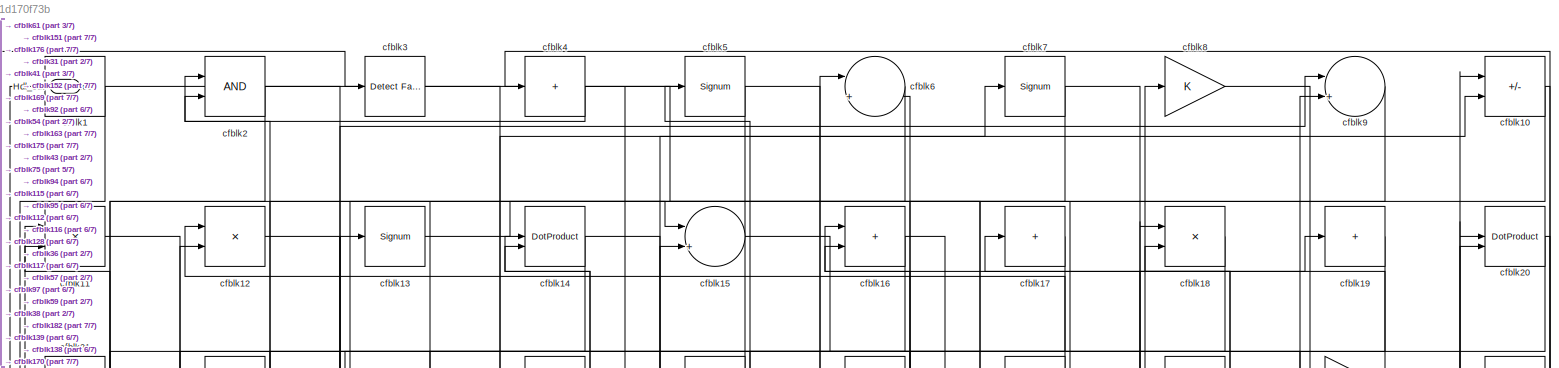
[diagram: root canvas - part 1/7, full width, top band]
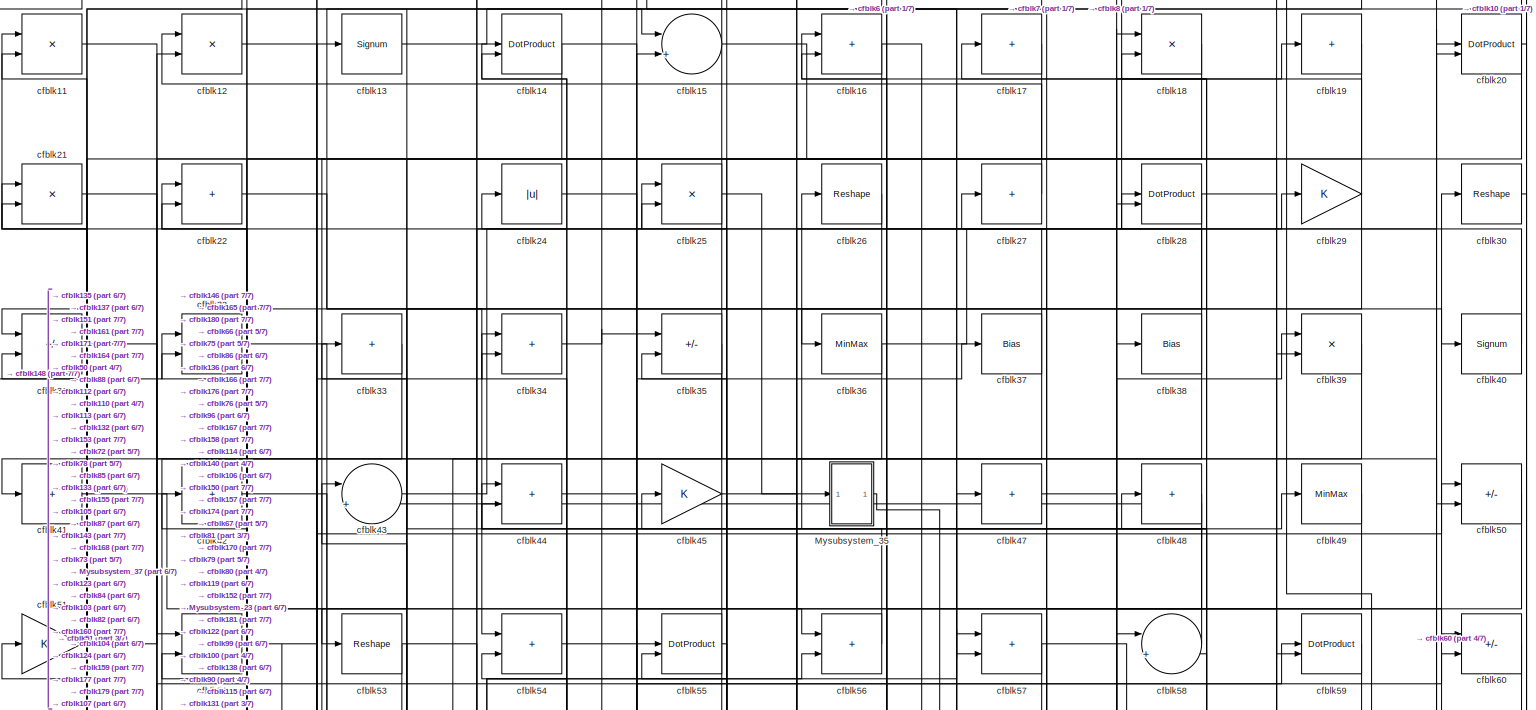
[diagram: root canvas - part 2/7, full width, top band]
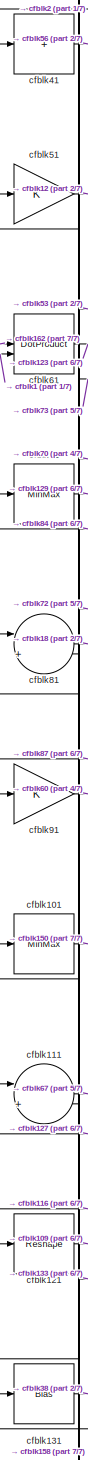
[diagram: root canvas - part 3/7, middle left region]
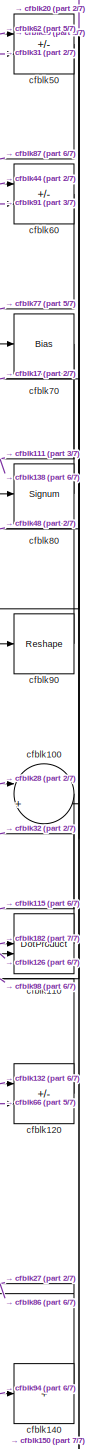
[diagram: root canvas - part 4/7, middle right region]
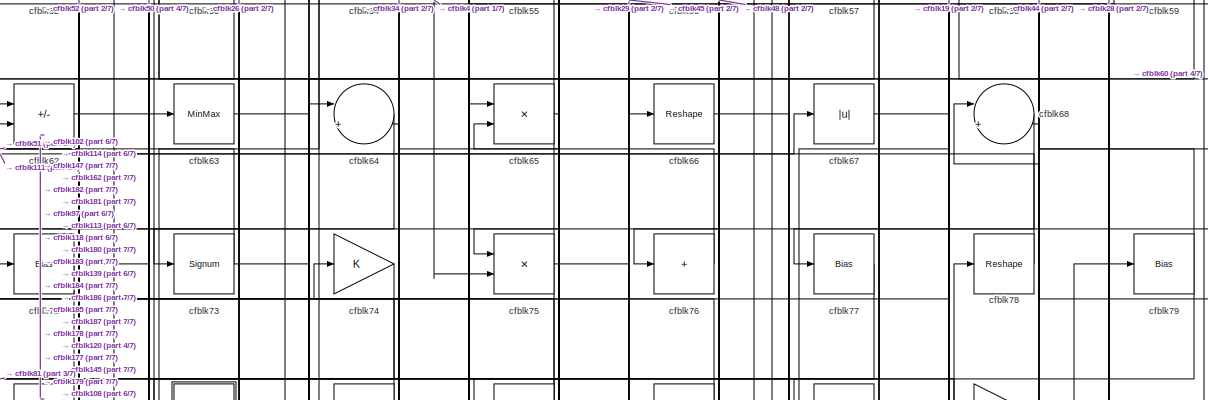
[diagram: root canvas - part 5/7, full width, middle band]
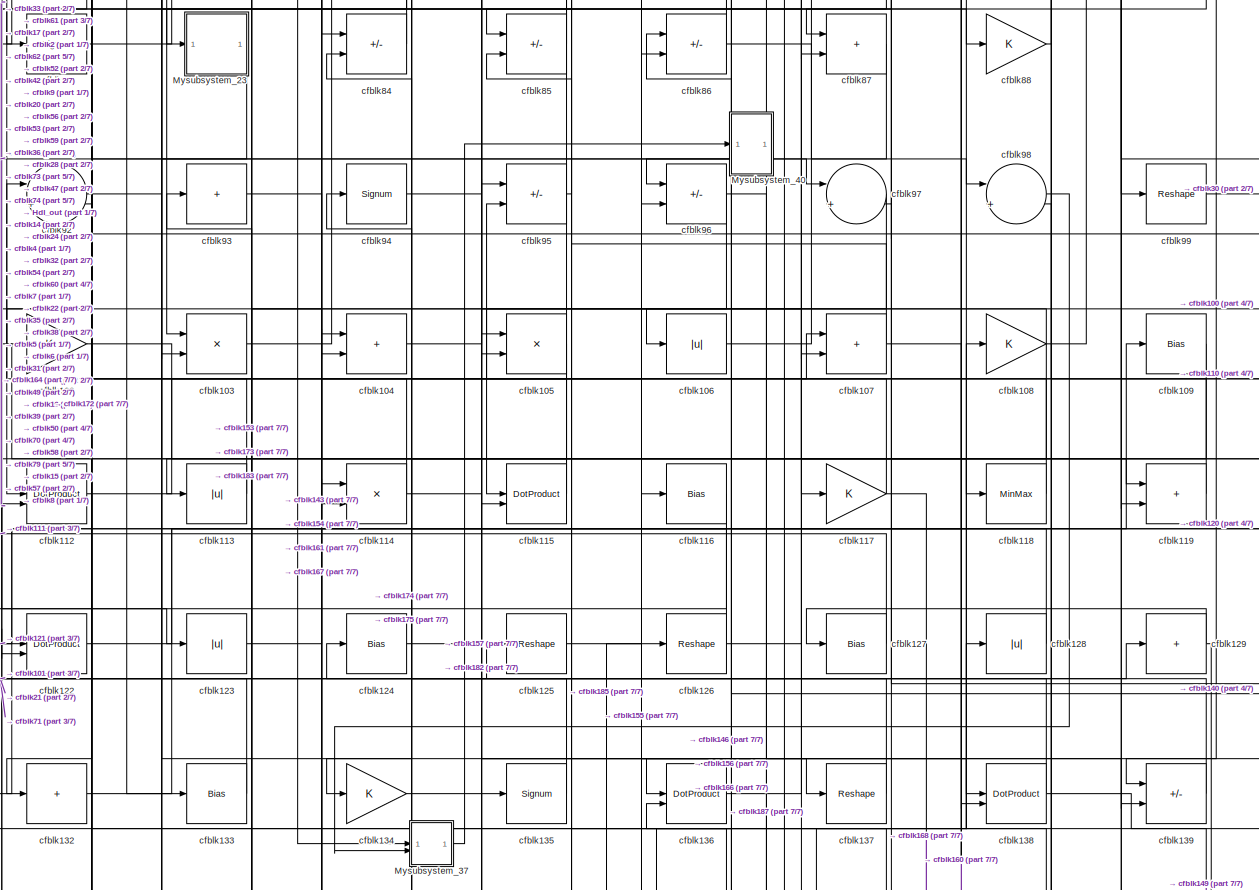
[diagram: root canvas - part 6/7, full width, middle band]
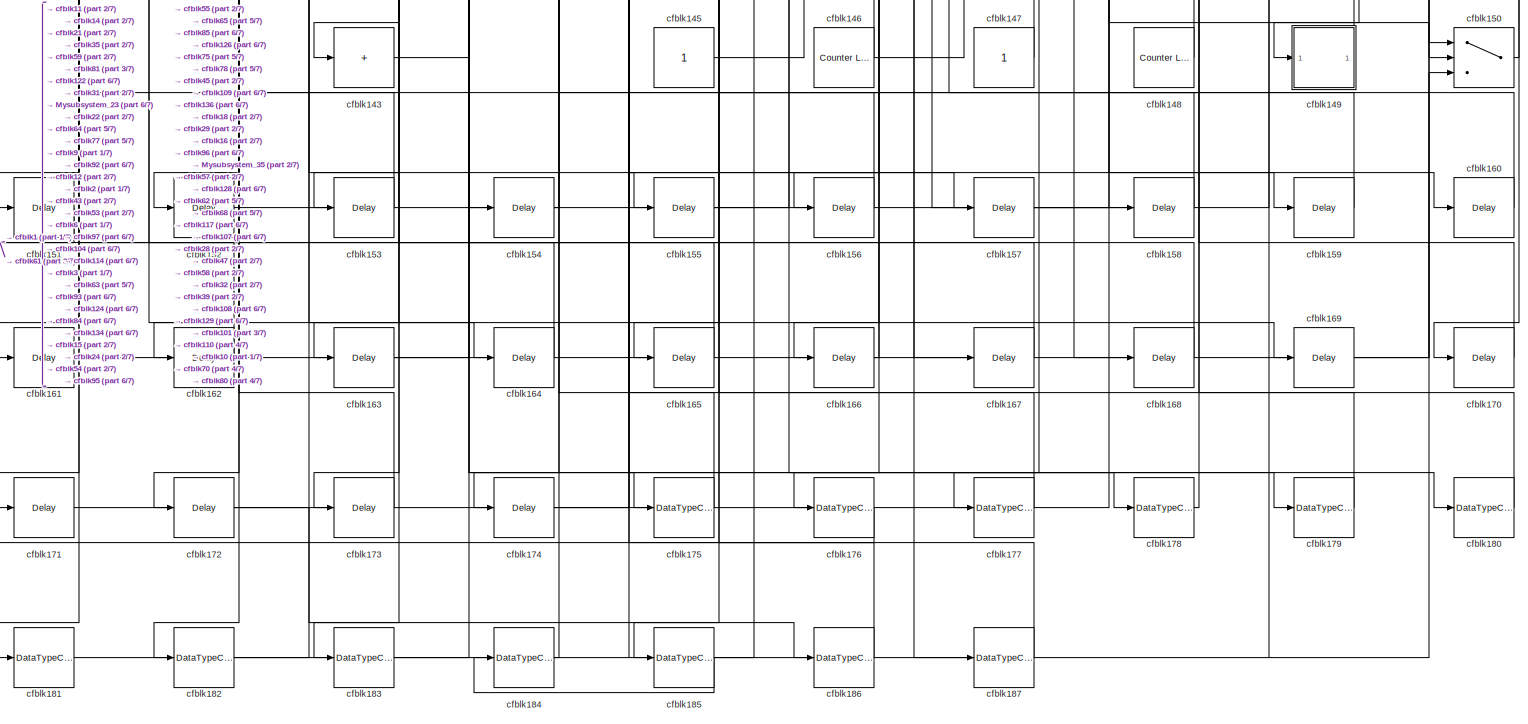
[diagram: root canvas - part 7/7, full width, bottom band]
MODEL slx_2e41d170f73b
KIND model
CONFIG AbsTol = auto
CONFIG EnableMultiTasking = off
CONFIG FixedStep = auto
CONFIG MaxStep = auto
CONFIG MinStep = auto
CONFIG RelTol = 1e-3
CONFIG SampleTimeConstraint = Unconstrained
CONFIG SolverName = VariableStepAuto
CONFIG StartTime = 0.0
CONFIG StopTime = 10.0
BLOCK [Outport] Hdl_out
  OutDataTypeStr = uint8
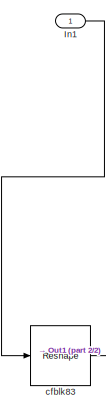
[diagram: Mysubsystem_23 - part 1/2, top right region]
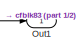
[diagram: Mysubsystem_23 - part 2/2, bottom left region]
BLOCK [SubSystem] Mysubsystem_23
  RTWFcnName = Mysubsystem_23
  RTWFcnNameOpts = User specified
  RTWFileNameOpts = Use function name
  RTWSystemCode = Reusable function
  TreatAsAtomicUnit = on
BLOCK [Inport] Mysubsystem_23/In1
BLOCK [Outport] Mysubsystem_23/Out1
BLOCK [Reshape] Mysubsystem_23/cfblk83
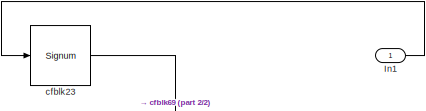
[diagram: Mysubsystem_35 - part 1/2, top left region]
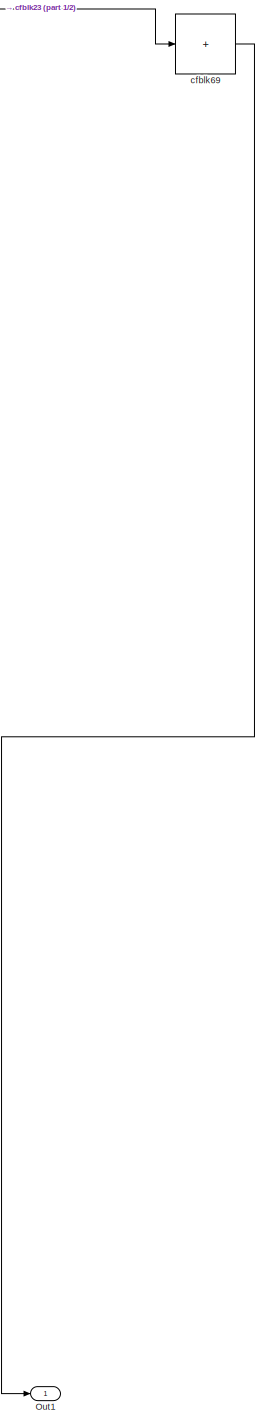
[diagram: Mysubsystem_35 - part 2/2, middle right region]
BLOCK [SubSystem] Mysubsystem_35
  RTWFcnName = Mysubsystem_35
  RTWFcnNameOpts = User specified
  RTWFileNameOpts = Use function name
  RTWSystemCode = Reusable function
  TreatAsAtomicUnit = on
BLOCK [Inport] Mysubsystem_35/In1
BLOCK [Outport] Mysubsystem_35/Out1
BLOCK [Signum] Mysubsystem_35/cfblk23
BLOCK [Sum] Mysubsystem_35/cfblk69
  IconShape = rectangular
  Inputs = +
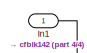
[diagram: Mysubsystem_37 - part 1/4, top center region]
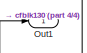
[diagram: Mysubsystem_37 - part 2/4, top center region]
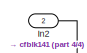
[diagram: Mysubsystem_37 - part 3/4, middle right region]
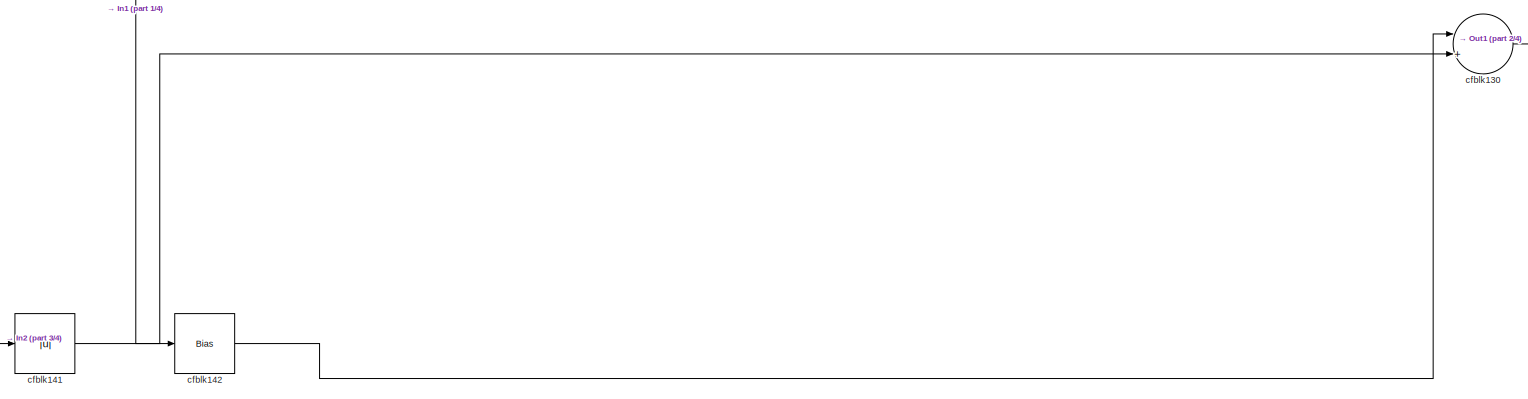
[diagram: Mysubsystem_37 - part 4/4, full width, bottom band]
BLOCK [SubSystem] Mysubsystem_37
  RTWFcnName = Mysubsystem_37
  RTWFcnNameOpts = User specified
  RTWFileNameOpts = Use function name
  RTWSystemCode = Reusable function
  TreatAsAtomicUnit = on
BLOCK [Inport] Mysubsystem_37/In1
BLOCK [Inport] Mysubsystem_37/In2
  Port = 2
BLOCK [Outport] Mysubsystem_37/Out1
BLOCK [Sum] Mysubsystem_37/cfblk130
  Inputs = |++
BLOCK [Abs] Mysubsystem_37/cfblk141
  SaturateOnIntegerOverflow = off
BLOCK [Bias] Mysubsystem_37/cfblk142
  Bias = 0.0
  SaturateOnIntegerOverflow = off
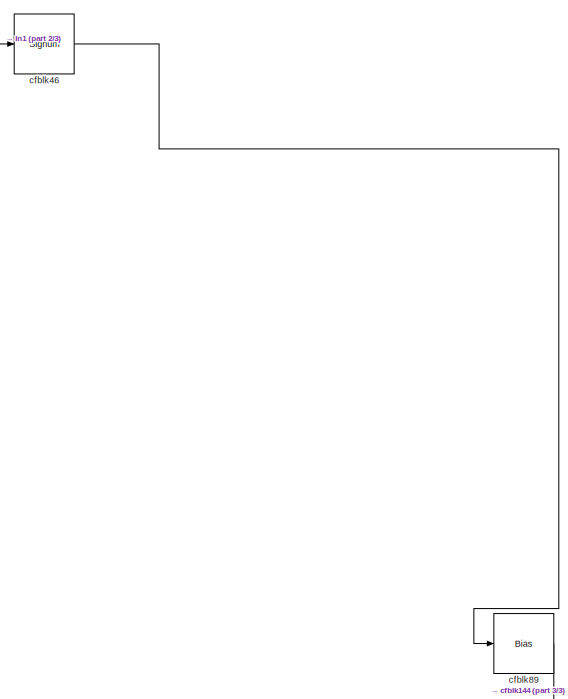
[diagram: Mysubsystem_40 - part 1/3, top right region]
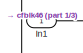
[diagram: Mysubsystem_40 - part 2/3, bottom left region]
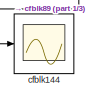
[diagram: Mysubsystem_40 - part 3/3, bottom left region]
BLOCK [SubSystem] Mysubsystem_40
  RTWFcnName = Mysubsystem_40
  RTWFcnNameOpts = User specified
  RTWFileNameOpts = Use function name
  RTWSystemCode = Reusable function
  TreatAsAtomicUnit = on
BLOCK [Inport] Mysubsystem_40/In1
BLOCK [Scope] Mysubsystem_40/cfblk144
  Floating = off
  NumInputPorts = 1
  ScopeSpecificationString = Simulink.scopes.TimeScopeBlockCfg('CurrentConfiguration', extmgr.ConfigurationSet(extmgr.Configuration('Core','General UI',true),extmgr.Configuration('Core','Source UI',true),extmgr.Configuration('Sources','WiredSimulink',true,'DataLoggingVariableName','ScopeData2','DataLoggingSaveFormat','Array','DataLoggingLimitDataPoints',true,'DataLoggingDecimation','1'),extmgr.Configuration('Visuals','Time Do...<+868ch>
BLOCK [Signum] Mysubsystem_40/cfblk46
BLOCK [Bias] Mysubsystem_40/cfblk89
  Bias = 0.0
  SaturateOnIntegerOverflow = off
BLOCK [Reference] cfblk1  REF=hdlsllib/Logic and Bit
Operations/Bit Slice
  SourceBlock = hdlsllib/Logic and Bit\nOperations/Bit Slice
  SourceType = Bit Slice
BLOCK [Sum] cfblk10
  IconShape = rectangular
  Inputs = +-
  OutDataTypeStr = uint8
BLOCK [Sum] cfblk100
  Inputs = |++
  OutDataTypeStr = uint8
BLOCK [MinMax] cfblk101
  OutDataTypeStr = uint8
BLOCK [Gain] cfblk102
  OutDataTypeStr = uint8
BLOCK [Product] cfblk103
  Inputs = */
  OutDataTypeStr = uint8
  RndMeth = Zero
  SaturateOnIntegerOverflow = on
BLOCK [Sum] cfblk104
  IconShape = rectangular
  OutDataTypeStr = uint8
BLOCK [Product] cfblk105
  Inputs = */
  OutDataTypeStr = uint8
  RndMeth = Zero
  SaturateOnIntegerOverflow = on
BLOCK [Abs] cfblk106
  OutDataTypeStr = uint8
  SaturateOnIntegerOverflow = off
BLOCK [Sum] cfblk107
  IconShape = rectangular
  OutDataTypeStr = uint8
BLOCK [Gain] cfblk108
  OutDataTypeStr = uint8
BLOCK [Bias] cfblk109
  Bias = 0.0
  SaturateOnIntegerOverflow = off
BLOCK [Product] cfblk11
  Inputs = */
  OutDataTypeStr = uint8
  RndMeth = Zero
  SaturateOnIntegerOverflow = on
BLOCK [DotProduct] cfblk110
  OutDataTypeStr = uint8
BLOCK [Sum] cfblk111
  Inputs = |++
  OutDataTypeStr = uint8
BLOCK [DotProduct] cfblk112
  OutDataTypeStr = uint8
BLOCK [Abs] cfblk113
  OutDataTypeStr = uint8
  SaturateOnIntegerOverflow = off
BLOCK [Product] cfblk114
  Inputs = */
  OutDataTypeStr = uint8
  RndMeth = Zero
  SaturateOnIntegerOverflow = on
BLOCK [DotProduct] cfblk115
  OutDataTypeStr = uint8
BLOCK [Bias] cfblk116
  Bias = 0.0
  SaturateOnIntegerOverflow = off
BLOCK [Gain] cfblk117
  OutDataTypeStr = uint8
BLOCK [MinMax] cfblk118
  OutDataTypeStr = uint8
BLOCK [Sum] cfblk119
  IconShape = rectangular
  OutDataTypeStr = uint8
BLOCK [Product] cfblk12
  Inputs = */
  OutDataTypeStr = uint8
  RndMeth = Zero
  SaturateOnIntegerOverflow = on
BLOCK [Sum] cfblk120
  IconShape = rectangular
  Inputs = +-
  OutDataTypeStr = uint8
BLOCK [Reshape] cfblk121
BLOCK [DotProduct] cfblk122
  OutDataTypeStr = uint8
BLOCK [Abs] cfblk123
  OutDataTypeStr = uint8
  SaturateOnIntegerOverflow = off
BLOCK [Bias] cfblk124
  Bias = 0.0
  SaturateOnIntegerOverflow = off
BLOCK [Reshape] cfblk125
BLOCK [Reshape] cfblk126
BLOCK [Bias] cfblk127
  Bias = 0.0
  SaturateOnIntegerOverflow = off
BLOCK [Abs] cfblk128
  OutDataTypeStr = uint8
  SaturateOnIntegerOverflow = off
BLOCK [Sum] cfblk129
  IconShape = rectangular
  Inputs = +
  OutDataTypeStr = uint8
BLOCK [Signum] cfblk13
BLOCK [Bias] cfblk131
  Bias = 0.0
  SaturateOnIntegerOverflow = off
BLOCK [Sum] cfblk132
  IconShape = rectangular
  Inputs = +
  OutDataTypeStr = uint8
BLOCK [Bias] cfblk133
  Bias = 0.0
  SaturateOnIntegerOverflow = off
BLOCK [Gain] cfblk134
  OutDataTypeStr = uint8
BLOCK [Signum] cfblk135
BLOCK [DotProduct] cfblk136
  OutDataTypeStr = uint8
BLOCK [Reshape] cfblk137
BLOCK [DotProduct] cfblk138
  OutDataTypeStr = uint8
BLOCK [Sum] cfblk139
  IconShape = rectangular
  Inputs = +-
  OutDataTypeStr = uint8
BLOCK [DotProduct] cfblk14
  OutDataTypeStr = uint8
BLOCK [Sum] cfblk140
  IconShape = rectangular
  Inputs = +
  OutDataTypeStr = uint8
BLOCK [Sum] cfblk143
  IconShape = rectangular
  Inputs = +
  OutDataTypeStr = uint8
BLOCK [Constant] cfblk145
  OutDataTypeStr = uint8
  SampleTime = -1
BLOCK [Reference] cfblk146  REF=hdlsllib/Sources/Counter
Limited
  SourceBlock = hdlsllib/Sources/Counter\nLimited
  SourceType = Counter Limited
BLOCK [Constant] cfblk147
  OutDataTypeStr = uint8
  SampleTime = -1
BLOCK [Reference] cfblk148  REF=hdlsllib/Sources/Counter
Limited
  SourceBlock = hdlsllib/Sources/Counter\nLimited
  SourceType = Counter Limited
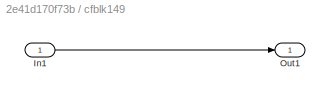
BLOCK [SubSystem] cfblk149
  LibrarySourceBlock = hdlsllib/Ports &\nSubsystems/Subsystem
BLOCK [Inport] cfblk149/In1
BLOCK [Outport] cfblk149/Out1
BLOCK [Sum] cfblk15
  Inputs = |++
  OutDataTypeStr = uint8
BLOCK [Switch] cfblk150
  InputSameDT = off
  OutDataTypeStr = uint8
  SaturateOnIntegerOverflow = off
BLOCK [Delay] cfblk151
  InputPortMap = u0
  SampleTime = 1
BLOCK [Delay] cfblk152
  InputPortMap = u0
  SampleTime = 1
BLOCK [Delay] cfblk153
  InputPortMap = u0
  SampleTime = 1
BLOCK [Delay] cfblk154
  InputPortMap = u0
  SampleTime = 1
BLOCK [Delay] cfblk155
  InputPortMap = u0
  SampleTime = 1
BLOCK [Delay] cfblk156
  InputPortMap = u0
  SampleTime = 1
BLOCK [Delay] cfblk157
  InputPortMap = u0
  SampleTime = 1
BLOCK [Delay] cfblk158
  InputPortMap = u0
  SampleTime = 1
BLOCK [Delay] cfblk159
  InputPortMap = u0
  SampleTime = 1
BLOCK [Sum] cfblk16
  IconShape = rectangular
  OutDataTypeStr = uint8
BLOCK [Delay] cfblk160
  InputPortMap = u0
  SampleTime = 1
BLOCK [Delay] cfblk161
  InputPortMap = u0
  SampleTime = 1
BLOCK [Delay] cfblk162
  InputPortMap = u0
  SampleTime = 1
BLOCK [Delay] cfblk163
  InputPortMap = u0
  SampleTime = 1
BLOCK [Delay] cfblk164
  InputPortMap = u0
  SampleTime = 1
BLOCK [Delay] cfblk165
  InputPortMap = u0
  SampleTime = 1
BLOCK [Delay] cfblk166
  InputPortMap = u0
  SampleTime = 1
BLOCK [Delay] cfblk167
  InputPortMap = u0
  SampleTime = 1
BLOCK [Delay] cfblk168
  InputPortMap = u0
  SampleTime = 1
BLOCK [Delay] cfblk169
  InputPortMap = u0
  SampleTime = 1
BLOCK [Sum] cfblk17
  IconShape = rectangular
  Inputs = +
  OutDataTypeStr = uint8
BLOCK [Delay] cfblk170
  InputPortMap = u0
  SampleTime = 1
BLOCK [Delay] cfblk171
  InputPortMap = u0
  SampleTime = 1
BLOCK [Delay] cfblk172
  InputPortMap = u0
  SampleTime = 1
BLOCK [Delay] cfblk173
  InputPortMap = u0
  SampleTime = 1
BLOCK [Delay] cfblk174
  InputPortMap = u0
  SampleTime = 1
BLOCK [DataTypeConversion] cfblk175
  OutDataTypeStr = uint8
  RndMeth = Floor
  SaturateOnIntegerOverflow = off
BLOCK [DataTypeConversion] cfblk176
  OutDataTypeStr = uint8
  RndMeth = Floor
  SaturateOnIntegerOverflow = off
BLOCK [DataTypeConversion] cfblk177
  OutDataTypeStr = uint8
  RndMeth = Floor
  SaturateOnIntegerOverflow = off
BLOCK [DataTypeConversion] cfblk178
  OutDataTypeStr = uint8
  RndMeth = Floor
  SaturateOnIntegerOverflow = off
BLOCK [DataTypeConversion] cfblk179
  OutDataTypeStr = uint8
  RndMeth = Floor
  SaturateOnIntegerOverflow = off
BLOCK [Product] cfblk18
  Inputs = */
  OutDataTypeStr = uint8
  RndMeth = Zero
  SaturateOnIntegerOverflow = on
BLOCK [DataTypeConversion] cfblk180
  OutDataTypeStr = uint8
  RndMeth = Floor
  SaturateOnIntegerOverflow = off
BLOCK [DataTypeConversion] cfblk181
  OutDataTypeStr = uint8
  RndMeth = Floor
  SaturateOnIntegerOverflow = off
BLOCK [DataTypeConversion] cfblk182
  OutDataTypeStr = uint8
  RndMeth = Floor
  SaturateOnIntegerOverflow = off
BLOCK [DataTypeConversion] cfblk183
  OutDataTypeStr = uint8
  RndMeth = Floor
  SaturateOnIntegerOverflow = off
BLOCK [DataTypeConversion] cfblk184
  OutDataTypeStr = uint8
  RndMeth = Floor
  SaturateOnIntegerOverflow = off
BLOCK [DataTypeConversion] cfblk185
  OutDataTypeStr = uint8
  RndMeth = Floor
  SaturateOnIntegerOverflow = off
BLOCK [DataTypeConversion] cfblk186
  OutDataTypeStr = uint8
  RndMeth = Floor
  SaturateOnIntegerOverflow = off
BLOCK [DataTypeConversion] cfblk187
  OutDataTypeStr = uint8
  RndMeth = Floor
  SaturateOnIntegerOverflow = off
BLOCK [Sum] cfblk19
  IconShape = rectangular
  Inputs = +
  OutDataTypeStr = uint8
BLOCK [Logic] cfblk2
  AllPortsSameDT = off
  OutDataTypeStr = boolean
BLOCK [DotProduct] cfblk20
  OutDataTypeStr = uint8
BLOCK [Product] cfblk21
  Inputs = */
  OutDataTypeStr = uint8
  RndMeth = Zero
  SaturateOnIntegerOverflow = on
BLOCK [Sum] cfblk22
  IconShape = rectangular
  OutDataTypeStr = uint8
BLOCK [Abs] cfblk24
  OutDataTypeStr = uint8
  SaturateOnIntegerOverflow = off
BLOCK [Product] cfblk25
  Inputs = */
  OutDataTypeStr = uint8
  RndMeth = Zero
  SaturateOnIntegerOverflow = on
BLOCK [Reshape] cfblk26
BLOCK [Sum] cfblk27
  IconShape = rectangular
  Inputs = +
  OutDataTypeStr = uint8
BLOCK [DotProduct] cfblk28
  OutDataTypeStr = uint8
BLOCK [Gain] cfblk29
  OutDataTypeStr = uint8
BLOCK [Reference] cfblk3  REF=hdlsllib/Logic and Bit
Operations/Detect Fall
Nonpositive
  SourceBlock = hdlsllib/Logic and Bit\nOperations/Detect Fall\nNonpositive
  SourceType = Detect Fall Nonpositive
BLOCK [Reshape] cfblk30
BLOCK [Sum] cfblk31
  IconShape = rectangular
  Inputs = +-
  OutDataTypeStr = uint8
BLOCK [Sum] cfblk32
  IconShape = rectangular
  OutDataTypeStr = uint8
BLOCK [Sum] cfblk33
  IconShape = rectangular
  Inputs = +
  OutDataTypeStr = uint8
BLOCK [Sum] cfblk34
  IconShape = rectangular
  OutDataTypeStr = uint8
BLOCK [Sum] cfblk35
  IconShape = rectangular
  Inputs = +-
  OutDataTypeStr = uint8
BLOCK [MinMax] cfblk36
  OutDataTypeStr = uint8
BLOCK [Bias] cfblk37
  Bias = 0.0
  SaturateOnIntegerOverflow = off
BLOCK [Bias] cfblk38
  Bias = 0.0
  SaturateOnIntegerOverflow = off
BLOCK [Product] cfblk39
  Inputs = */
  OutDataTypeStr = uint8
  RndMeth = Zero
  SaturateOnIntegerOverflow = on
BLOCK [Sum] cfblk4
  IconShape = rectangular
  Inputs = +
  OutDataTypeStr = uint8
BLOCK [Signum] cfblk40
BLOCK [Sum] cfblk41
  IconShape = rectangular
  Inputs = +
  OutDataTypeStr = uint8
BLOCK [Sum] cfblk42
  IconShape = rectangular
  Inputs = +
  OutDataTypeStr = uint8
BLOCK [Sum] cfblk43
  Inputs = |++
  OutDataTypeStr = uint8
BLOCK [Sum] cfblk44
  IconShape = rectangular
  OutDataTypeStr = uint8
BLOCK [Gain] cfblk45
  OutDataTypeStr = uint8
BLOCK [Sum] cfblk47
  IconShape = rectangular
  Inputs = +
  OutDataTypeStr = uint8
BLOCK [Sum] cfblk48
  IconShape = rectangular
  Inputs = +
  OutDataTypeStr = uint8
BLOCK [MinMax] cfblk49
  OutDataTypeStr = uint8
BLOCK [Signum] cfblk5
BLOCK [Sum] cfblk50
  IconShape = rectangular
  Inputs = +-
  OutDataTypeStr = uint8
BLOCK [Gain] cfblk51
  OutDataTypeStr = uint8
BLOCK [Product] cfblk52
  Inputs = */
  OutDataTypeStr = uint8
  RndMeth = Zero
  SaturateOnIntegerOverflow = on
BLOCK [Reshape] cfblk53
BLOCK [Sum] cfblk54
  IconShape = rectangular
  OutDataTypeStr = uint8
BLOCK [DotProduct] cfblk55
  OutDataTypeStr = uint8
BLOCK [Sum] cfblk56
  IconShape = rectangular
  OutDataTypeStr = uint8
BLOCK [Sum] cfblk57
  IconShape = rectangular
  OutDataTypeStr = uint8
BLOCK [Sum] cfblk58
  Inputs = |++
  OutDataTypeStr = uint8
BLOCK [DotProduct] cfblk59
  OutDataTypeStr = uint8
BLOCK [Sum] cfblk6
  Inputs = |++
  OutDataTypeStr = uint8
BLOCK [Sum] cfblk60
  IconShape = rectangular
  Inputs = +-
  OutDataTypeStr = uint8
BLOCK [DotProduct] cfblk61
  OutDataTypeStr = uint8
BLOCK [Sum] cfblk62
  IconShape = rectangular
  Inputs = +-
  OutDataTypeStr = uint8
BLOCK [MinMax] cfblk63
  OutDataTypeStr = uint8
BLOCK [Sum] cfblk64
  Inputs = |++
  OutDataTypeStr = uint8
BLOCK [Product] cfblk65
  Inputs = */
  OutDataTypeStr = uint8
  RndMeth = Zero
  SaturateOnIntegerOverflow = on
BLOCK [Reshape] cfblk66
BLOCK [Abs] cfblk67
  OutDataTypeStr = uint8
  SaturateOnIntegerOverflow = off
BLOCK [Sum] cfblk68
  Inputs = |++
  OutDataTypeStr = uint8
BLOCK [Signum] cfblk7
BLOCK [Bias] cfblk70
  Bias = 0.0
  SaturateOnIntegerOverflow = off
BLOCK [MinMax] cfblk71
  OutDataTypeStr = uint8
BLOCK [Bias] cfblk72
  Bias = 0.0
  SaturateOnIntegerOverflow = off
BLOCK [Signum] cfblk73
BLOCK [Gain] cfblk74
  OutDataTypeStr = uint8
BLOCK [Product] cfblk75
  Inputs = */
  OutDataTypeStr = uint8
  RndMeth = Zero
  SaturateOnIntegerOverflow = on
BLOCK [Sum] cfblk76
  IconShape = rectangular
  Inputs = +
  OutDataTypeStr = uint8
BLOCK [Bias] cfblk77
  Bias = 0.0
  SaturateOnIntegerOverflow = off
BLOCK [Reshape] cfblk78
BLOCK [Bias] cfblk79
  Bias = 0.0
  SaturateOnIntegerOverflow = off
BLOCK [Gain] cfblk8
  OutDataTypeStr = uint8
BLOCK [Signum] cfblk80
BLOCK [Sum] cfblk81
  Inputs = |++
  OutDataTypeStr = uint8
BLOCK [Signum] cfblk82
BLOCK [Sum] cfblk84
  IconShape = rectangular
  Inputs = +-
  OutDataTypeStr = uint8
BLOCK [Sum] cfblk85
  IconShape = rectangular
  Inputs = +-
  OutDataTypeStr = uint8
BLOCK [Sum] cfblk86
  IconShape = rectangular
  Inputs = +-
  OutDataTypeStr = uint8
BLOCK [Sum] cfblk87
  IconShape = rectangular
  OutDataTypeStr = uint8
BLOCK [Gain] cfblk88
  OutDataTypeStr = uint8
BLOCK [Sum] cfblk9
  Inputs = |++
  OutDataTypeStr = uint8
BLOCK [Reshape] cfblk90
BLOCK [Gain] cfblk91
  OutDataTypeStr = uint8
BLOCK [Sum] cfblk92
  Inputs = |++
  OutDataTypeStr = uint8
BLOCK [Sum] cfblk93
  IconShape = rectangular
  Inputs = +
  OutDataTypeStr = uint8
BLOCK [Signum] cfblk94
BLOCK [Sum] cfblk95
  IconShape = rectangular
  Inputs = +-
  OutDataTypeStr = uint8
BLOCK [Sum] cfblk96
  IconShape = rectangular
  Inputs = +-
  OutDataTypeStr = uint8
BLOCK [Sum] cfblk97
  Inputs = |++
  OutDataTypeStr = uint8
BLOCK [Sum] cfblk98
  Inputs = |++
  OutDataTypeStr = uint8
BLOCK [Reshape] cfblk99
LINE Mysubsystem_23/In1:1 -> Mysubsystem_23/cfblk83:1
LINE Mysubsystem_23/cfblk83:1 -> Mysubsystem_23/Out1:1
LINE Mysubsystem_23:1 -> cfblk172:1
LINE Mysubsystem_35/In1:1 -> Mysubsystem_35/cfblk23:1
LINE Mysubsystem_35/cfblk23:1 -> Mysubsystem_35/cfblk69:1
LINE Mysubsystem_35/cfblk69:1 -> Mysubsystem_35/Out1:1
LINE Mysubsystem_35:1 -> cfblk158:1
LINE Mysubsystem_37/In1:1 -> Mysubsystem_37/cfblk142:1
LINE Mysubsystem_37/In2:1 -> Mysubsystem_37/cfblk141:1
LINE Mysubsystem_37/cfblk130:1 -> Mysubsystem_37/Out1:1
LINE Mysubsystem_37/cfblk141:1 -> Mysubsystem_37/cfblk130:2
LINE Mysubsystem_37/cfblk142:1 -> Mysubsystem_37/cfblk130:1
LINE Mysubsystem_37:1 -> Mysubsystem_40:1
LINE Mysubsystem_40/In1:1 -> Mysubsystem_40/cfblk46:1
LINE Mysubsystem_40/cfblk46:1 -> Mysubsystem_40/cfblk89:1
LINE Mysubsystem_40/cfblk89:1 -> Mysubsystem_40/cfblk144:1
LINE cfblk100:1 -> cfblk115:1
LINE cfblk101:1 -> cfblk150:1
LINE cfblk102:1 -> cfblk119:1
LINE cfblk103:1 -> cfblk47:1
LINE cfblk104:1 -> cfblk37:1
LINE cfblk105:1 -> cfblk122:2
LINE cfblk106:1 -> cfblk39:1
NET cfblk107:1 -> cfblk160:1, cfblk35:2
NET cfblk108:1 -> cfblk106:1, cfblk174:1, cfblk183:1, cfblk79:1
NET cfblk109:1 -> cfblk134:1, cfblk156:1
NET cfblk10:1 -> cfblk170:1, cfblk36:1, cfblk57:2
LINE cfblk110:1 -> cfblk32:2
LINE cfblk111:1 -> cfblk67:1
LINE cfblk112:1 -> cfblk6:1
LINE cfblk113:1 -> cfblk42:1
NET cfblk114:1 -> cfblk138:1, cfblk62:1
NET cfblk115:1 -> Hdl_out:1, cfblk14:1, cfblk24:1
LINE cfblk116:1 -> cfblk121:1
NET cfblk117:1 -> cfblk168:1, cfblk2:1
LINE cfblk118:1 -> cfblk95:2
LINE cfblk119:1 -> cfblk92:1
LINE cfblk11:1 -> cfblk52:1
LINE cfblk120:1 -> cfblk98:2
LINE cfblk121:1 -> cfblk109:1
LINE cfblk122:1 -> cfblk20:2
LINE cfblk123:1 -> cfblk28:1
LINE cfblk124:1 -> cfblk59:1
LINE cfblk125:1 -> cfblk137:1
NET cfblk126:1 -> cfblk110:2, cfblk94:1
LINE cfblk127:1 -> cfblk111:1
LINE cfblk128:1 -> cfblk6:2
NET cfblk129:1 -> cfblk127:1, cfblk149:1
LINE cfblk12:1 -> cfblk155:1
LINE cfblk131:1 -> cfblk38:1
LINE cfblk132:1 -> cfblk120:1
LINE cfblk133:1 -> cfblk101:1
LINE cfblk134:1 -> cfblk157:1
NET cfblk135:1 -> cfblk125:1, cfblk21:1
LINE cfblk136:1 -> cfblk49:1
NET cfblk137:1 -> cfblk21:2, cfblk93:1
NET cfblk138:1 -> cfblk14:2, cfblk4:1
LINE cfblk139:1 -> cfblk74:1
LINE cfblk13:1 -> cfblk15:1
NET cfblk140:1 -> cfblk27:1, cfblk86:1
LINE cfblk143:1 -> cfblk107:1
LINE cfblk145:1 -> cfblk78:1
NET cfblk146:1 -> cfblk128:1, cfblk45:1
LINE cfblk147:1 -> cfblk62:2
LINE cfblk148:1 -> cfblk32:1
LINE cfblk149/In1:1 -> cfblk149/Out1:1
LINE cfblk149:1 -> cfblk108:1
NET cfblk14:1 -> cfblk107:2, cfblk161:1
NET cfblk150:1 -> cfblk70:1, cfblk80:1
LINE cfblk151:1 -> cfblk1:1
LINE cfblk152:1 -> cfblk39:2
LINE cfblk153:1 -> cfblk22:2
LINE cfblk154:1 -> cfblk84:2
LINE cfblk155:1 -> cfblk96:2
LINE cfblk156:1 -> cfblk85:2
LINE cfblk157:1 -> cfblk58:1
LINE cfblk158:1 -> cfblk81:1
LINE cfblk159:1 -> cfblk57:1
LINE cfblk15:1 -> cfblk119:2
LINE cfblk160:1 -> cfblk54:2
LINE cfblk161:1 -> cfblk104:1
LINE cfblk162:1 -> cfblk61:1
LINE cfblk163:1 -> cfblk10:1
LINE cfblk164:1 -> cfblk122:1
LINE cfblk165:1 -> cfblk11:2
LINE cfblk166:1 -> cfblk136:2
LINE cfblk167:1 -> cfblk114:1
LINE cfblk168:1 -> cfblk43:1
LINE cfblk169:1 -> cfblk150:3
NET cfblk16:1 -> cfblk112:2, cfblk167:1
LINE cfblk170:1 -> cfblk18:2
LINE cfblk171:1 -> cfblk15:2
LINE cfblk172:1 -> cfblk186:1
LINE cfblk173:1 -> cfblk92:2
LINE cfblk174:1 -> cfblk28:2
LINE cfblk175:1 -> cfblk124:1
LINE cfblk176:1 -> cfblk3:1
LINE cfblk177:1 -> cfblk55:1
LINE cfblk178:1 -> cfblk68:1
LINE cfblk179:1 -> cfblk68:2
LINE cfblk17:1 -> cfblk82:1
LINE cfblk180:1 -> cfblk55:2
LINE cfblk181:1 -> cfblk63:1
NET cfblk182:1 -> cfblk110:1, cfblk95:1, cfblk9:2
LINE cfblk183:1 -> cfblk64:1
LINE cfblk184:1 -> cfblk64:2
NET cfblk185:1 -> cfblk126:1, cfblk184:1
LINE cfblk186:1 -> cfblk65:1
LINE cfblk187:1 -> cfblk65:2
NET cfblk18:1 -> cfblk176:1, cfblk53:1
LINE cfblk19:1 -> cfblk75:1
LINE cfblk1:1 -> cfblk61:2
NET cfblk20:1 -> cfblk100:2, cfblk103:1
NET cfblk21:1 -> cfblk103:2, cfblk171:1, cfblk88:1
LINE cfblk22:1 -> cfblk40:1
LINE cfblk24:1 -> cfblk159:1
LINE cfblk25:1 -> Mysubsystem_35:1
LINE cfblk26:1 -> cfblk73:1
LINE cfblk27:1 -> cfblk12:1
NET cfblk28:1 -> cfblk100:1, cfblk72:1
NET cfblk29:1 -> cfblk166:1, cfblk16:2
NET cfblk2:1 -> cfblk169:1, cfblk41:1
LINE cfblk30:1 -> cfblk90:1
NET cfblk31:1 -> cfblk164:1, cfblk50:2
LINE cfblk32:1 -> cfblk105:1
LINE cfblk33:1 -> cfblk112:1
LINE cfblk34:1 -> cfblk35:1
LINE cfblk35:1 -> cfblk151:1
NET cfblk36:1 -> Mysubsystem_37:1, cfblk20:1
NET cfblk37:1 -> cfblk136:1, cfblk16:1
NET cfblk38:1 -> cfblk86:2, cfblk8:1
LINE cfblk39:1 -> cfblk85:1
LINE cfblk3:1 -> cfblk175:1
LINE cfblk40:1 -> cfblk11:1
LINE cfblk41:1 -> cfblk56:1
NET cfblk42:1 -> cfblk105:2, cfblk87:2
NET cfblk43:1 -> cfblk10:2, cfblk25:1
LINE cfblk44:1 -> cfblk60:1
LINE cfblk45:1 -> cfblk66:1
LINE cfblk47:1 -> cfblk150:2
NET cfblk48:1 -> cfblk44:2, cfblk76:1
NET cfblk49:1 -> cfblk132:1, cfblk96:1
NET cfblk4:1 -> cfblk117:1, cfblk2:2, cfblk75:2
LINE cfblk50:1 -> cfblk87:1
LINE cfblk51:1 -> cfblk12:2
NET cfblk52:1 -> cfblk133:1, cfblk13:1
NET cfblk53:1 -> cfblk131:1, cfblk143:1, cfblk84:1
NET cfblk54:1 -> cfblk135:1, cfblk179:1
LINE cfblk55:1 -> cfblk165:1
LINE cfblk56:1 -> cfblk33:1
NET cfblk57:1 -> cfblk114:2, cfblk99:1
NET cfblk58:1 -> cfblk25:2, cfblk26:1, cfblk43:2
NET cfblk59:1 -> Mysubsystem_23:1, cfblk181:1
LINE cfblk5:1 -> cfblk116:1
NET cfblk60:1 -> cfblk115:2, cfblk77:1
LINE cfblk61:1 -> cfblk123:1
NET cfblk62:1 -> cfblk139:2, cfblk50:1, cfblk97:1
LINE cfblk63:1 -> cfblk180:1
LINE cfblk64:1 -> cfblk182:1
LINE cfblk65:1 -> cfblk185:1
LINE cfblk66:1 -> cfblk120:2
LINE cfblk67:1 -> cfblk19:1
LINE cfblk68:1 -> cfblk177:1
NET cfblk6:1 -> cfblk163:1, cfblk31:1
NET cfblk70:1 -> cfblk111:2, cfblk138:2
LINE cfblk71:1 -> cfblk129:1
NET cfblk72:1 -> cfblk34:2, cfblk81:2
NET cfblk73:1 -> cfblk118:1, cfblk51:1
LINE cfblk74:1 -> cfblk113:1
NET cfblk75:1 -> cfblk178:1, cfblk29:1
LINE cfblk76:1 -> cfblk34:1
LINE cfblk77:1 -> cfblk162:1
LINE cfblk78:1 -> cfblk52:2
NET cfblk79:1 -> cfblk102:1, cfblk44:1
NET cfblk7:1 -> cfblk54:1, cfblk59:2
LINE cfblk80:1 -> cfblk17:1
LINE cfblk81:1 -> cfblk18:1
LINE cfblk82:1 -> cfblk56:2
LINE cfblk84:1 -> cfblk71:1
LINE cfblk85:1 -> cfblk22:1
NET cfblk86:1 -> cfblk31:2, cfblk98:1
LINE cfblk87:1 -> cfblk91:1
LINE cfblk88:1 -> cfblk58:2
LINE cfblk8:1 -> cfblk139:1
LINE cfblk90:1 -> cfblk48:1
LINE cfblk91:1 -> cfblk60:2
NET cfblk92:1 -> cfblk104:2, cfblk9:1
LINE cfblk93:1 -> cfblk154:1
NET cfblk94:1 -> cfblk140:1, cfblk7:1
LINE cfblk95:1 -> cfblk5:1
NET cfblk96:1 -> cfblk173:1, cfblk187:1
LINE cfblk97:1 -> cfblk153:1
LINE cfblk98:1 -> Mysubsystem_37:2
LINE cfblk99:1 -> cfblk30:1
NET cfblk9:1 -> cfblk152:1, cfblk97:2
note: NET lines group one-source signal fan-out (src -> all destinations, sorted); 1:1 wires keep LINE
